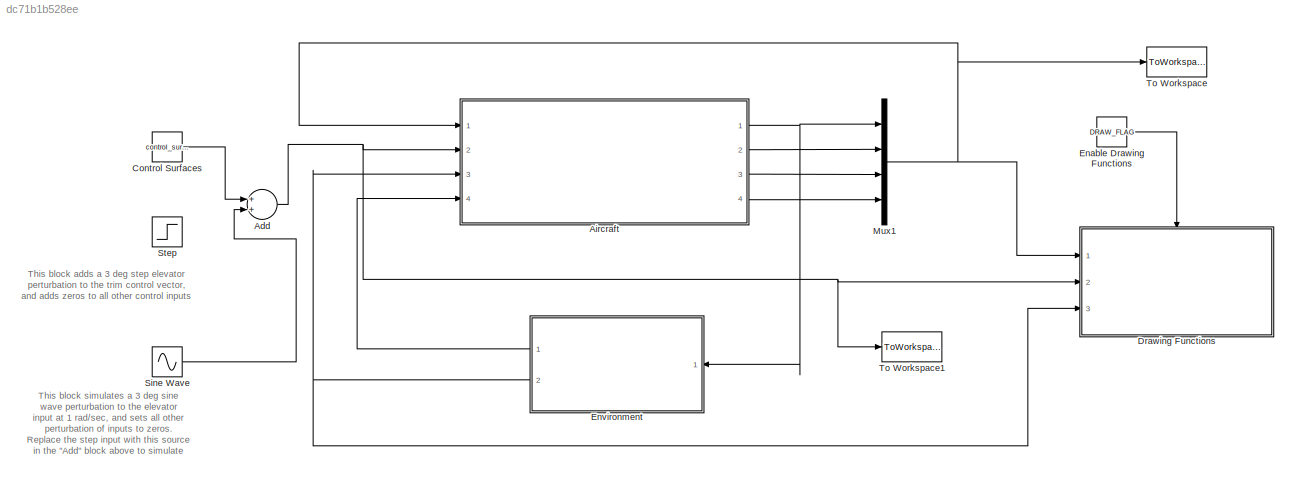
MODEL slx_dc71b1b528ee
KIND model
CONFIG AbsTol = auto
CONFIG FixedStep = auto
CONFIG MaxStep = auto
CONFIG MinStep = auto
CONFIG RelTol = 1e-3
CONFIG SampleTimeConstraint = Unconstrained
CONFIG Solver = ode45
CONFIG SolverMode = Auto
CONFIG SolverName = ode45
CONFIG StartTime = 0.0
CONFIG StopTime = 10000
BLOCK [Sum] Add
  InputSameDT = off
  OutDataTypeStr = Inherit: Inherit via internal rule
  Ports = [2, 1]
  SaturateOnIntegerOverflow = off
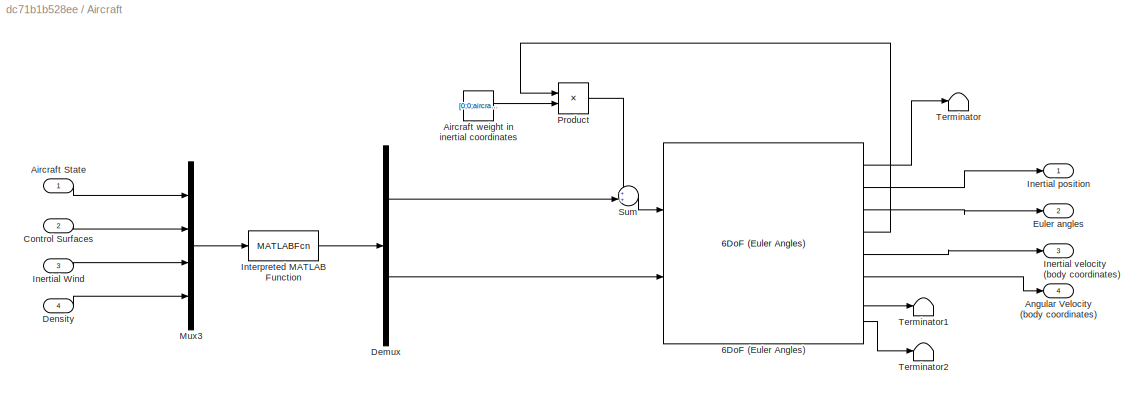
BLOCK [SubSystem] Aircraft
  Ports = [4, 4]
  RequestExecContextInheritance = off
  Variant = off
BLOCK [Reference] Aircraft/6DoF (Euler Angles)  REF=aerolibobsolete/6DoF (Euler Angles)
  Ports = [2, 8]
  SourceBlock = aerolibobsolete/6DoF (Euler Angles)
  SourceType = 6DoF EoM (Body Axis)
BLOCK [Inport] Aircraft/Aircraft State
  IconDisplay = Port number
BLOCK [Constant] Aircraft/Aircraft weight in inertial coordinates
  Value = [0;0;aircraft_parameters.W]
BLOCK [Outport] Aircraft/Angular Velocity (body coordinates)
  IconDisplay = Port number
  Port = 4
BLOCK [Inport] Aircraft/Control Surfaces
  IconDisplay = Port number
  Port = 2
BLOCK [Demux] Aircraft/Demux
  DisplayOption = bar
  Outputs = 2
  Ports = [1, 2]
BLOCK [Inport] Aircraft/Density
  IconDisplay = Port number
  Port = 4
BLOCK [Outport] Aircraft/Euler angles
  IconDisplay = Port number
  Port = 2
BLOCK [Inport] Aircraft/Inertial Wind
  IconDisplay = Port number
  Port = 3
BLOCK [Outport] Aircraft/Inertial position
  IconDisplay = Port number
BLOCK [Outport] Aircraft/Inertial velocity (body coordinates)
  IconDisplay = Port number
  Port = 3
BLOCK [MATLABFcn] Aircraft/Interpreted MATLAB Function
  MATLABFcn = S_AeroForcesAndMoments(u, aircraft_parameters)
  OutputDimensions = 6
  Ports = [1, 1]
BLOCK [Mux] Aircraft/Mux3
  DisplayOption = bar
  Ports = [4, 1]
BLOCK [Product] Aircraft/Product
  InputSameDT = off
  Multiplication = Matrix(*)
  OutDataTypeStr = Inherit: Inherit via internal rule
  Ports = [2, 1]
  SaturateOnIntegerOverflow = off
BLOCK [Sum] Aircraft/Sum
  IconShape = round
  InputSameDT = off
  Inputs = ++|
  OutDataTypeStr = Inherit: Inherit via internal rule
  Ports = [2, 1]
  SaturateOnIntegerOverflow = off
BLOCK [Terminator] Aircraft/Terminator
BLOCK [Terminator] Aircraft/Terminator1
BLOCK [Terminator] Aircraft/Terminator2
BLOCK [Constant] Control Surfaces
  Value = control_surfaces_constant
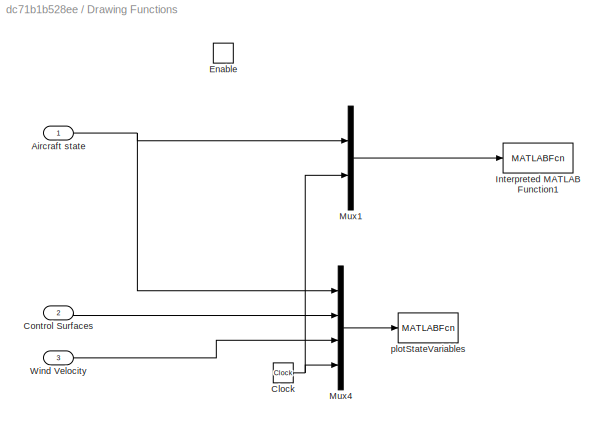
BLOCK [SubSystem] Drawing Functions
  Ports = [3, 0, 1]
  RequestExecContextInheritance = off
  TreatAsAtomicUnit = on
  Variant = off
BLOCK [Inport] Drawing Functions/Aircraft state
  IconDisplay = Port number
BLOCK [Clock] Drawing Functions/Clock
BLOCK [Inport] Drawing Functions/Control Surfaces
  IconDisplay = Port number
  Port = 2
BLOCK [EnablePort] Drawing Functions/Enable
  Ports = []
BLOCK [MATLABFcn] Drawing Functions/Interpreted MATLAB Function1
  MATLABFcn = drawAircraft(u,pts)
  OutputDimensions = 0
  Ports = [1]
BLOCK [Mux] Drawing Functions/Mux1
  DisplayOption = bar
  Inputs = 2
  Ports = [2, 1]
BLOCK [Mux] Drawing Functions/Mux4
  DisplayOption = bar
  Ports = [4, 1]
BLOCK [Inport] Drawing Functions/Wind Velocity
  IconDisplay = Port number
  Port = 3
BLOCK [MATLABFcn] Drawing Functions/plotStateVariables
  MATLABFcn = PlotStateVariables(u)
  OutputDimensions = 0
  Ports = [1]
  SampleTime = .1
BLOCK [Constant] Enable Drawing Functions
  Value = DRAW_FLAG
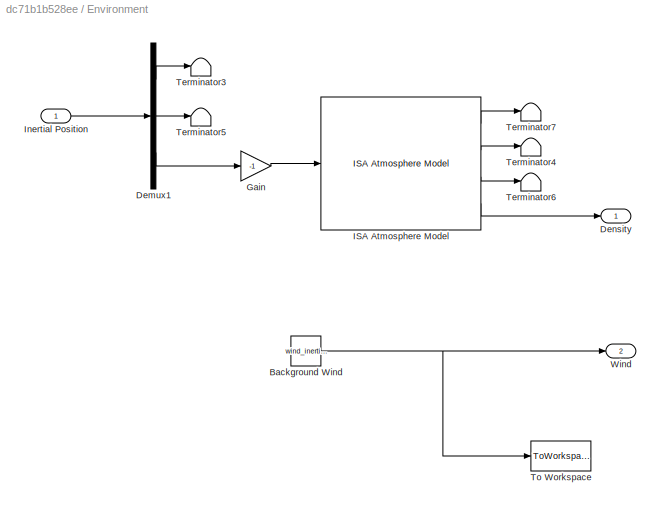
BLOCK [SubSystem] Environment
  Ports = [1, 2]
  RequestExecContextInheritance = off
  Variant = off
BLOCK [Constant] Environment/Background Wind
  Value = wind_inertial
BLOCK [Demux] Environment/Demux1
  DisplayOption = bar
  Outputs = 3
  Ports = [1, 3]
BLOCK [Outport] Environment/Density
  IconDisplay = Port number
BLOCK [Gain] Environment/Gain
  Gain = -1
  OutDataTypeStr = Inherit: Inherit via internal rule
  ParamDataTypeStr = Inherit: Inherit via internal rule
  SaturateOnIntegerOverflow = off
BLOCK [Reference] Environment/ISA Atmosphere Model  REF=aerolibatmos2/ISA Atmosphere Model
  Ports = [1, 4]
  SourceBlock = aerolibatmos2/ISA Atmosphere Model
  SourceType = International Standard Atmosphere Model
BLOCK [Inport] Environment/Inertial Position
  IconDisplay = Port number
BLOCK [Terminator] Environment/Terminator3
BLOCK [Terminator] Environment/Terminator4
BLOCK [Terminator] Environment/Terminator5
BLOCK [Terminator] Environment/Terminator6
BLOCK [Terminator] Environment/Terminator7
BLOCK [ToWorkspace] Environment/To Workspace
  FixptAsFi = on
  MaxDataPoints = inf
  Ports = [1]
  SampleTime = -1
  Save2DSignal = 3-D array (concatenate along third dimension)
  SaveFormat = Timeseries
  VariableName = background_wind_array
BLOCK [Outport] Environment/Wind
  IconDisplay = Port number
  Port = 2
BLOCK [Mux] Mux1
  DisplayOption = bar
  Ports = [4, 1]
BLOCK [Sin] Sine Wave
  Amplitude = [5*pi/180 ;0 ; 0 ; 0]
  Bias = [0;0;0;0];
  Frequency = 0.536114500304593/10
  Ports = [0, 1]
  SampleTime = 0
  VectorParams1D = off
BLOCK [Step] Step
  After = [delta_deltae;0;0;0]
  Before = [0;0;0;0]
  SampleTime = 0
  VectorParams1D = off
BLOCK [ToWorkspace] To Workspace
  MaxDataPoints = inf
  Ports = [1]
  SampleTime = -1
  SaveFormat = Timeseries
  VariableName = aircraft_state_array
BLOCK [ToWorkspace] To Workspace1
  MaxDataPoints = inf
  Ports = [1]
  SampleTime = -1
  SaveFormat = Timeseries
  VariableName = control_input_array
ANNOTATION (root): This block adds a 3 deg step elevator perturbation to the trim control vector, and adds zeros to all other control inputs
ANNOTATION (root): This block simulates a 3 deg sine wave perturbation to the elevator input at 1 rad/sec, and sets all other perturbation of inputs to zeros. Replace the step input with this source in the "Add" block above to simulate a sine wave perturbation to the control inputs about the trim conditions.
NET Add:1 -> Aircraft:2, Drawing Functions:2, To Workspace1:1
LINE Aircraft/6DoF (Euler Angles):1 -> Aircraft/Terminator:1
LINE Aircraft/6DoF (Euler Angles):2 -> Aircraft/Inertial position:1
LINE Aircraft/6DoF (Euler Angles):3 -> Aircraft/Euler angles:1
LINE Aircraft/6DoF (Euler Angles):4 -> Aircraft/Product:1
LINE Aircraft/6DoF (Euler Angles):5 -> Aircraft/Inertial velocity (body coordinates):1
LINE Aircraft/6DoF (Euler Angles):6 -> Aircraft/Angular Velocity (body coordinates):1
LINE Aircraft/6DoF (Euler Angles):7 -> Aircraft/Terminator1:1
LINE Aircraft/6DoF (Euler Angles):8 -> Aircraft/Terminator2:1
LINE Aircraft/Aircraft State:1 -> Aircraft/Mux3:1
LINE Aircraft/Aircraft weight in inertial coordinates:1 -> Aircraft/Product:2
LINE Aircraft/Control Surfaces:1 -> Aircraft/Mux3:2
LINE Aircraft/Demux:1 -> Aircraft/Sum:2
LINE Aircraft/Demux:2 -> Aircraft/6DoF (Euler Angles):2
LINE Aircraft/Density:1 -> Aircraft/Mux3:4
LINE Aircraft/Inertial Wind:1 -> Aircraft/Mux3:3
LINE Aircraft/Interpreted MATLAB Function:1 -> Aircraft/Demux:1
LINE Aircraft/Mux3:1 -> Aircraft/Interpreted MATLAB Function:1
LINE Aircraft/Product:1 -> Aircraft/Sum:1
LINE Aircraft/Sum:1 -> Aircraft/6DoF (Euler Angles):1
NET Aircraft:1 -> Environment:1, Mux1:1
LINE Aircraft:2 -> Mux1:2
LINE Aircraft:3 -> Mux1:3
LINE Aircraft:4 -> Mux1:4
LINE Control Surfaces:1 -> Add:1
NET Drawing Functions/Aircraft state:1 -> Drawing Functions/Mux1:1, Drawing Functions/Mux4:1
NET Drawing Functions/Clock:1 -> Drawing Functions/Mux1:2, Drawing Functions/Mux4:4
LINE Drawing Functions/Control Surfaces:1 -> Drawing Functions/Mux4:2
LINE Drawing Functions/Mux1:1 -> Drawing Functions/Interpreted MATLAB Function1:1
LINE Drawing Functions/Mux4:1 -> Drawing Functions/plotStateVariables:1
LINE Drawing Functions/Wind Velocity:1 -> Drawing Functions/Mux4:3
LINE Enable Drawing Functions:1 -> Drawing Functions:enable
NET Environment/Background Wind:1 -> Environment/To Workspace:1, Environment/Wind:1
LINE Environment/Demux1:1 -> Environment/Terminator3:1
LINE Environment/Demux1:2 -> Environment/Terminator5:1
LINE Environment/Demux1:3 -> Environment/Gain:1
LINE Environment/Gain:1 -> Environment/ISA Atmosphere Model:1
LINE Environment/ISA Atmosphere Model:1 -> Environment/Terminator7:1
LINE Environment/ISA Atmosphere Model:2 -> Environment/Terminator4:1
LINE Environment/ISA Atmosphere Model:3 -> Environment/Terminator6:1
LINE Environment/ISA Atmosphere Model:4 -> Environment/Density:1
LINE Environment/Inertial Position:1 -> Environment/Demux1:1
LINE Environment:1 -> Aircraft:4
NET Environment:2 -> Aircraft:3, Drawing Functions:3
NET Mux1:1 -> Aircraft:1, Drawing Functions:1, To Workspace:1
LINE Sine Wave:1 -> Add:2
note: NET lines group one-source signal fan-out (src -> all destinations, sorted); 1:1 wires keep LINE
